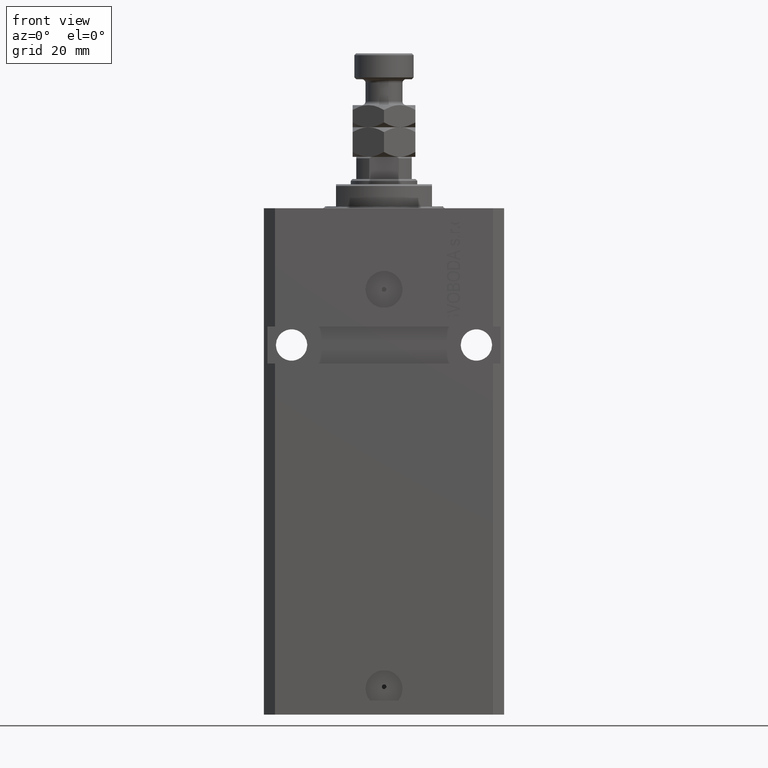
[diagram: clean part render]
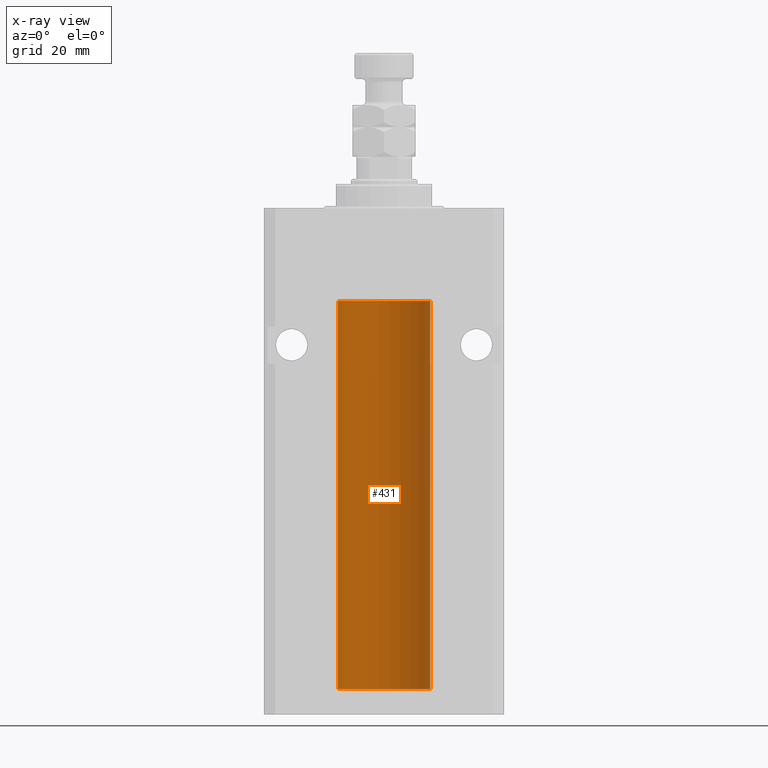
[diagram: x-ray — body ghosted, one internal face saturated and labeled with its STEP entity id]
A machine part, front view, then the same camera in x-ray: the body is ghosted and one INTERNAL B-rep face — a face not visible from any outside direction — is saturated and labeled: STEP entity #431.
In plain terms, the highlighted cylindrical surface (partial cylindrical patch) has radius 12.5 mm, axis along (0, 0, 1).
Its self-contained STEP definition (entity closure, byte-faithful):
#431 = ADVANCED_FACE ( 'NONE', ( #40098 ), #17930, .F. ) ;
#1737 = DIRECTION ( 'NONE',  ( 0.000000000000000000, 0.000000000000000000, 1.000000000000000000 ) ) ;
#1907 = CARTESIAN_POINT ( 'NONE',  ( 12.50000000000000000, 0.000000000000000000, -130.0999999999999943 ) ) ;
#2609 = CARTESIAN_POINT ( 'NONE',  ( -12.50000000000000000, 1.530808498934191521E-15, -25.10000000000000142 ) ) ;
#5080 = CIRCLE ( 'NONE', #12995, 12.50000000000000000 ) ;
#5572 = VECTOR ( 'NONE', #48008, 1000.000000000000000 ) ;
#5826 = CARTESIAN_POINT ( 'NONE',  ( -12.50000000000000000, 1.530808498934191521E-15, -130.0999999999999943 ) ) ;
#6808 = CARTESIAN_POINT ( 'NONE',  ( -12.49422197749723829, 0.3843754434364221040, -124.5004709956809705 ) ) ;
#7786 = CARTESIAN_POINT ( 'NONE',  ( -12.50000000000017941, 3.883381307462307207E-13, -125.6250000000035953 ) ) ;
#8325 = CARTESIAN_POINT ( 'NONE',  ( 12.50000000000000000, 0.000000000000000000, -130.0999999999999943 ) ) ;
#9168 = DIRECTION ( 'NONE',  ( 1.000000000000000000, 0.000000000000000000, 0.000000000000000000 ) ) ;
#9290 = VERTEX_POINT ( 'NONE', #32925 ) ;
#10384 = DIRECTION ( 'NONE',  ( 0.000000000000000000, 0.000000000000000000, 1.000000000000000000 ) ) ;
#10519 = CARTESIAN_POINT ( 'NONE',  ( -12.49011732893843707, 0.5003763274120269777, -125.3834811128928806 ) ) ;
#11010 = CARTESIAN_POINT ( 'NONE',  ( -12.49915784441387068, 0.1636601911727856851, -124.3912681898942765 ) ) ;
#11249 = CARTESIAN_POINT ( 'NONE',  ( -12.50000000000000178, 0.08260426088727608473, -124.3749999999999858 ) ) ;
#12995 = AXIS2_PLACEMENT_3D ( 'NONE', #40727, #10384, #25435 ) ;
#13984 = LINE ( 'NONE', #5826, #5572 ) ;
#14214 = DIRECTION ( 'NONE',  ( 1.000000000000000000, 0.000000000000000000, 0.000000000000000000 ) ) ;
#17930 = CYLINDRICAL_SURFACE ( 'NONE', #17988, 12.50000000000000000 ) ;
#17988 = AXIS2_PLACEMENT_3D ( 'NONE', #47989, #44043, #14214 ) ;
#18156 = CARTESIAN_POINT ( 'NONE',  ( -12.50000000000000000, -1.890568805888175348E-14, -124.3750000000000000 ) ) ;
#18473 = CIRCLE ( 'NONE', #27901, 12.50000000000000000 ) ;
#19822 = EDGE_LOOP ( 'NONE', ( #38446, #36799, #37203, #38608, #35744, #24398 ) ) ;
#24398 = ORIENTED_EDGE ( 'NONE', *, *, #47453, .T. ) ;
#24434 = EDGE_CURVE ( 'NONE', #29132, #37751, #35732, .T. ) ;
#25435 = DIRECTION ( 'NONE',  ( 1.000000000000000000, 0.000000000000000000, 0.000000000000000000 ) ) ;
#25967 = B_SPLINE_CURVE_WITH_KNOTS ( 'NONE', 3,
 ( #45036, #11249, #11010, #30255, #6808, #34191, #41582, #37164, #26303, #44558, #10519, #48745, #40610, #7786 ),
 .UNSPECIFIED., .F., .F.,
 ( 4, 2, 2, 2, 2, 2, 4 ),
 ( 3.496117753580553008E-18, 0.0002442924852390892100, 0.0004885849704781749505, 0.0009771699409563759219, 0.001221462426195476462, 0.001465754911434576785, 0.001954339881912777865 ),
 .UNSPECIFIED. ) ;
#26303 = CARTESIAN_POINT ( 'NONE',  ( -12.48520330846398174, 0.6088355886774048376, -125.1632543185256310 ) ) ;
#27901 = AXIS2_PLACEMENT_3D ( 'NONE', #42951, #1737, #9168 ) ;
#29132 = VERTEX_POINT ( 'NONE', #8325 ) ;
#29424 = CARTESIAN_POINT ( 'NONE',  ( -12.50000000000000000, 1.530808498934191521E-15, -130.0999999999999943 ) ) ;
#30255 = CARTESIAN_POINT ( 'NONE',  ( -12.49625855304193855, 0.3150454781037954621, -124.4540280029748658 ) ) ;
#31165 = CARTESIAN_POINT ( 'NONE',  ( -12.50000000000017941, 3.883381307462307207E-13, -125.6250000000035953 ) ) ;
#31940 = VERTEX_POINT ( 'NONE', #18156 ) ;
#32234 = EDGE_CURVE ( 'NONE', #31940, #33395, #37069, .T. ) ;
#32925 = CARTESIAN_POINT ( 'NONE',  ( -12.50000000000000000, 1.530808498934191521E-15, -130.0999999999999943 ) ) ;
#33395 = VERTEX_POINT ( 'NONE', #2609 ) ;
#34191 = CARTESIAN_POINT ( 'NONE',  ( -12.48810268015257563, 0.5573155909661203777, -124.6734741009386909 ) ) ;
#34580 = VECTOR ( 'NONE', #46823, 1000.000000000000000 ) ;
#35732 = LINE ( 'NONE', #1907, #34580 ) ;
#35744 = ORIENTED_EDGE ( 'NONE', *, *, #32234, .F. ) ;
#36799 = ORIENTED_EDGE ( 'NONE', *, *, #43991, .F. ) ;
#37069 = LINE ( 'NONE', #29424, #43334 ) ;
#37164 = CARTESIAN_POINT ( 'NONE',  ( -12.48436376893640265, 0.6250290278979852010, -125.0813208282447135 ) ) ;
#37203 = ORIENTED_EDGE ( 'NONE', *, *, #24434, .T. ) ;
#37253 = VERTEX_POINT ( 'NONE', #31165 ) ;
#37751 = VERTEX_POINT ( 'NONE', #48804 ) ;
#37938 = EDGE_CURVE ( 'NONE', #9290, #37253, #13984, .T. ) ;
#38446 = ORIENTED_EDGE ( 'NONE', *, *, #37938, .F. ) ;
#38608 = ORIENTED_EDGE ( 'NONE', *, *, #46020, .T. ) ;
#40098 = FACE_OUTER_BOUND ( 'NONE', #19822, .T. ) ;
#40267 = DIRECTION ( 'NONE',  ( -0.000000000000000000, -0.000000000000000000, 1.000000000000000000 ) ) ;
#40610 = CARTESIAN_POINT ( 'NONE',  ( -12.49999999999999467, 0.1631761135151251485, -125.6249999999999005 ) ) ;
#40727 = CARTESIAN_POINT ( 'NONE',  ( 0.000000000000000000, 0.000000000000000000, -25.10000000000000142 ) ) ;
#41582 = CARTESIAN_POINT ( 'NONE',  ( -12.48436813453758631, 0.6249418250771061611, -124.8366899679892441 ) ) ;
#42951 = CARTESIAN_POINT ( 'NONE',  ( 0.000000000000000000, 0.000000000000000000, -130.0999999999999943 ) ) ;
#43334 = VECTOR ( 'NONE', #40267, 1000.000000000000000 ) ;
#43991 = EDGE_CURVE ( 'NONE', #29132, #9290, #18473, .T. ) ;
#44043 = DIRECTION ( 'NONE',  ( -0.000000000000000000, -0.000000000000000000, 1.000000000000000000 ) ) ;
#44558 = CARTESIAN_POINT ( 'NONE',  ( -12.48809959379011758, 0.5462151254764870956, -125.3146137048161677 ) ) ;
#45036 = CARTESIAN_POINT ( 'NONE',  ( -12.50000000000000000, -1.890568805888175348E-14, -124.3750000000000000 ) ) ;
#46020 = EDGE_CURVE ( 'NONE', #37751, #33395, #5080, .T. ) ;
#46823 = DIRECTION ( 'NONE',  ( -0.000000000000000000, -0.000000000000000000, 1.000000000000000000 ) ) ;
#47453 = EDGE_CURVE ( 'NONE', #31940, #37253, #25967, .T. ) ;
#47989 = CARTESIAN_POINT ( 'NONE',  ( 0.000000000000000000, 0.000000000000000000, -130.0999999999999943 ) ) ;
#48008 = DIRECTION ( 'NONE',  ( -0.000000000000000000, -0.000000000000000000, 1.000000000000000000 ) ) ;
#48745 = CARTESIAN_POINT ( 'NONE',  ( -12.49631005746706691, 0.3253680783018559897, -125.5585674046538998 ) ) ;
#48804 = CARTESIAN_POINT ( 'NONE',  ( 12.50000000000000000, 0.000000000000000000, -25.10000000000000142 ) ) ;